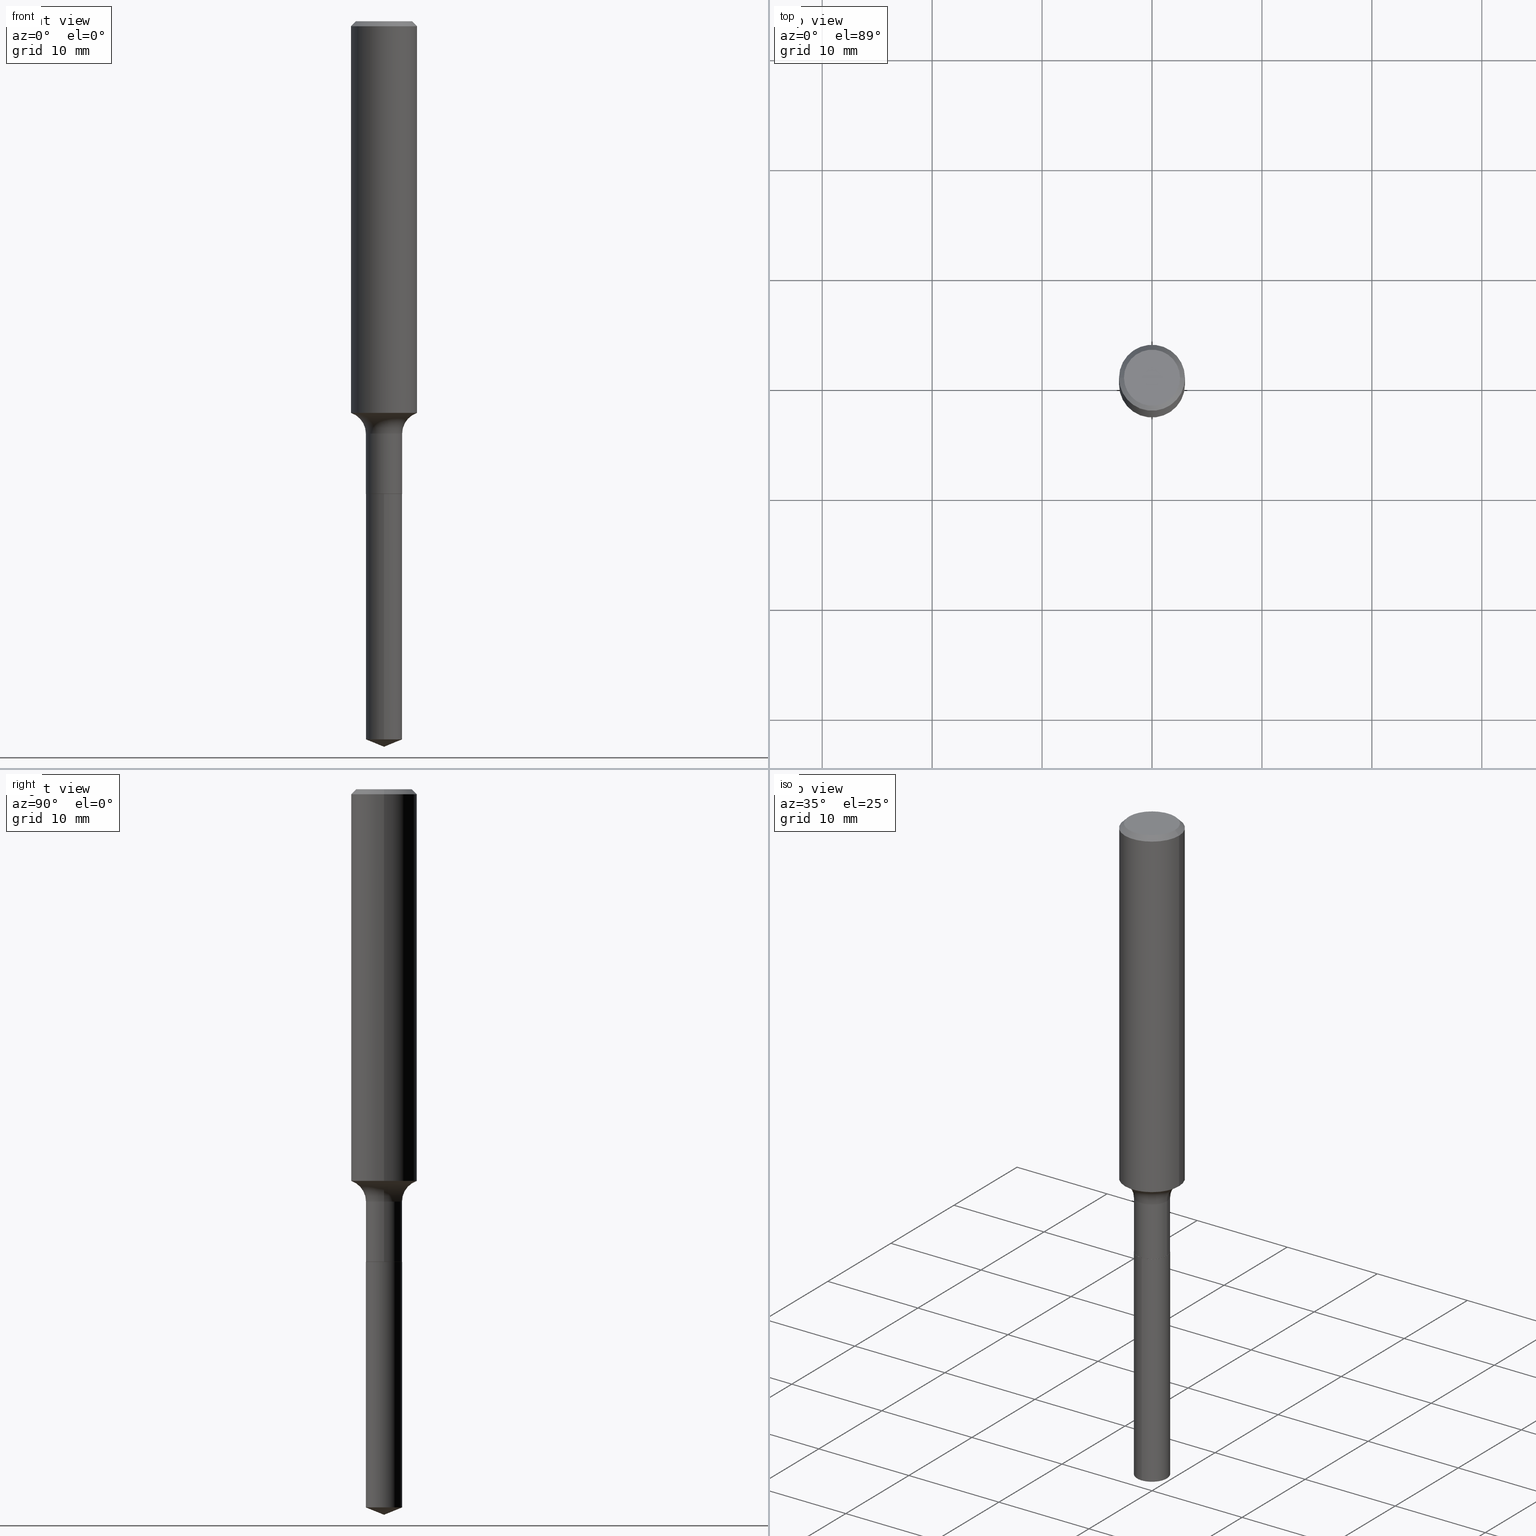
[diagram: canonical four-view strip — front | top / right | iso, engineering-drawing reading convention]
A machine part, canonical four-view strip (front | top / right | iso — engineering-drawing reading convention). The complete STEP part file that produces these views, byte-faithful:
ISO-10303-21;
HEADER;
FILE_DESCRIPTION (( 'STEP AP203' ),
    '1' );
FILE_NAME ('69226.STEP',
    '2024-04-19T17:26:17',
    ( '' ),
    ( '' ),
    'SwSTEP 2.0',
    'SolidWorks 2023',
    '' );
FILE_SCHEMA (( 'CONFIG_CONTROL_DESIGN' ));
ENDSEC;

DATA;
#1 = CARTESIAN_POINT ( 'NONE',  ( 0.000000000000000000, 0.000000000000000000, 0.000000000000000000 ) ) ;
#2 = ORIENTED_EDGE ( 'NONE', *, *, #439, .F. ) ;
#3 = ORIENTED_EDGE ( 'NONE', *, *, #476, .F. ) ;
#4 = AXIS2_PLACEMENT_3D ( 'NONE', #474, #397, #175 ) ;
#5 = AXIS2_PLACEMENT_3D ( 'NONE', #176, #334, #301 ) ;
#6 = DIRECTION ( 'NONE',  ( -2.445468806185136597E-29, 3.491481338843145583E-15, 1.000000000000000000 ) ) ;
#7 = LOCAL_TIME ( 13, 26, 17.00000000000000000, #323 ) ;
#8 = VERTEX_POINT ( 'NONE', #373 ) ;
#9 = SHAPE_DEFINITION_REPRESENTATION ( #18, #149 ) ;
#10 = CARTESIAN_POINT ( 'NONE',  ( 4.138955954468343780E-29, -5.909332165992023872E-15, -1.692500000000000115 ) ) ;
#11 = EDGE_CURVE ( 'NONE', #117, #8, #156, .T. ) ;
#12 = AXIS2_PLACEMENT_3D ( 'NONE', #279, #356, #132 ) ;
#13 = CIRCLE ( 'NONE', #125, 0.06494999999999999385 ) ;
#14 = CARTESIAN_POINT ( 'NONE',  ( 0.06494999999999999385, -6.361129851238325562E-15, -1.692000000000000171 ) ) ;
#15 = APPROVAL_PERSON_ORGANIZATION ( #278, #339, #200 ) ;
#16 = APPROVAL_DATE_TIME ( #390, #432 ) ;
#17 = FACE_OUTER_BOUND ( 'NONE', #418, .T. ) ;
#18 = PRODUCT_DEFINITION_SHAPE ( 'NONE', 'NONE',  #423 ) ;
#19 = APPROVAL ( #294, 'UNSPECIFIED' ) ;
#20 = PERSON_AND_ORGANIZATION ( #395, #281 ) ;
#21 = ORIENTED_EDGE ( 'NONE', *, *, #265, .T. ) ;
#22 = CARTESIAN_POINT ( 'NONE',  ( 4.332147990156998495E-31, -6.185159191760674092E-17, -0.01771500000000011954 ) ) ;
#23 = DIRECTION ( 'NONE',  ( 1.000000000000000000, -6.982962677686266711E-15, 4.883557194083113462E-29 ) ) ;
#24 = DIRECTION ( 'NONE',  ( -6.982962677686266711E-15, -1.000000000000000000, 4.206078512185163024E-15 ) ) ;
#25 = ADVANCED_FACE ( 'NONE', ( #17 ), #387, .T. ) ;
#26 = VERTEX_POINT ( 'NONE', #438 ) ;
#27 = CARTESIAN_POINT ( 'NONE',  ( 3.610734692332354436E-29, -5.155172196801903565E-15, -1.476499999999999924 ) ) ;
#28 = EDGE_CURVE ( 'NONE', #311, #8, #394, .T. ) ;
#29 = FACE_OUTER_BOUND ( 'NONE', #275, .T. ) ;
#30 = AXIS2_PLACEMENT_3D ( 'NONE', #472, #124, #325 ) ;
#31 = CC_DESIGN_APPROVAL ( #19, ( #314 ) ) ;
#32 = CARTESIAN_POINT ( 'NONE',  ( 0.1180999999999999966, -8.865394841523548556E-16, -0.01771500000000011954 ) ) ;
#33 = EDGE_CURVE ( 'NONE', #241, #349, #377, .T. ) ;
#34 = FACE_OUTER_BOUND ( 'NONE', #473, .T. ) ;
#35 = LINE ( 'NONE', #453, #255 ) ;
#36 = TOROIDAL_SURFACE ( 'NONE', #74, 0.1429499999999999660, 0.07799999999999999989 ) ;
#37 = ORIENTED_EDGE ( 'NONE', *, *, #11, .T. ) ;
#38 = DIRECTION ( 'NONE',  ( 1.000000000000000000, -6.982962677686271444E-15, 0.000000000000000000 ) ) ;
#39 = ORIENTED_EDGE ( 'NONE', *, *, #115, .T. ) ;
#40 = EDGE_LOOP ( 'NONE', ( #172, #466, #94, #151 ) ) ;
#41 = ORIENTED_EDGE ( 'NONE', *, *, #326, .T. ) ;
#42 = CYLINDRICAL_SURFACE ( 'NONE', #109, 0.06494999999999999385 ) ;
#43 = CC_DESIGN_PERSON_AND_ORGANIZATION_ASSIGNMENT ( #201, #96, ( #243 ) ) ;
#44 = CARTESIAN_POINT ( 'NONE',  ( 3.610734692332354436E-29, -5.155172196801903565E-15, -1.476499999999999924 ) ) ;
#45 = ORIENTED_EDGE ( 'NONE', *, *, #113, .T. ) ;
#46 = CONICAL_SURFACE ( 'NONE', #234, 0.06444999999999999341, 0.7853981633975507526 ) ;
#47 = PERSON_AND_ORGANIZATION_ROLE ( 'classification_officer' ) ;
#48 = APPROVAL_STATUS ( 'not_yet_approved' ) ;
#49 = EDGE_CURVE ( 'NONE', #83, #492, #290, .T. ) ;
#50 = DIRECTION ( 'NONE',  ( 1.000000000000000000, -6.982962677686268288E-15, 0.000000000000000000 ) ) ;
#51 =( NAMED_UNIT ( * ) SI_UNIT ( $, .STERADIAN. ) SOLID_ANGLE_UNIT ( ) );
#52 = DIRECTION ( 'NONE',  ( 2.451878459129799997E-29, -3.482302351011597532E-15, -1.000000000000000000 ) ) ;
#53 = VECTOR ( 'NONE', #98, 39.37007874015748143 ) ;
#54 = PERSON_AND_ORGANIZATION ( #395, #281 ) ;
#55 = VECTOR ( 'NONE', #188, 39.37007874015748143 ) ;
#56 = ORIENTED_EDGE ( 'NONE', *, *, #158, .T. ) ;
#57 = DIRECTION ( 'NONE',  ( -2.451878459129800558E-29, 3.482302351011597138E-15, 1.000000000000000000 ) ) ;
#58 = LOCAL_TIME ( 13, 26, 17.00000000000000000, #475 ) ;
#59 = ADVANCED_FACE ( 'NONE', ( #469 ), #320, .T. ) ;
#60 = DATE_AND_TIME ( #396, #180 ) ;
#61 = EDGE_CURVE ( 'NONE', #110, #117, #405, .T. ) ;
#62 = ORIENTED_EDGE ( 'NONE', *, *, #326, .F. ) ;
#63 = DIRECTION ( 'NONE',  ( -2.451878459129800558E-29, 3.482302351011597532E-15, 1.000000000000000000 ) ) ;
#64 = DIRECTION ( 'NONE',  ( 1.000000000000000000, -6.982962677686270655E-15, 0.000000000000000000 ) ) ;
#65 = DIRECTION ( 'NONE',  ( 1.000000000000000000, -6.982962677686259611E-15, 0.000000000000000000 ) ) ;
#66 = AXIS2_PLACEMENT_3D ( 'NONE', #178, #69, #261 ) ;
#67 = CC_DESIGN_SECURITY_CLASSIFICATION ( #314, ( #322 ) ) ;
#68 = ADVANCED_FACE ( 'NONE', ( #92 ), #357, .F. ) ;
#69 = DIRECTION ( 'NONE',  ( -2.445468806185136597E-29, 3.491481338843145583E-15, 1.000000000000000000 ) ) ;
#70 = EDGE_CURVE ( 'NONE', #26, #383, #207, .T. ) ;
#71 = DIRECTION ( 'NONE',  ( -2.445468806185136597E-29, 3.491481338843145583E-15, 1.000000000000000000 ) ) ;
#72 = CARTESIAN_POINT ( 'NONE',  ( 4.332147990156998495E-31, -6.185159191760674092E-17, -0.01771500000000011954 ) ) ;
#73 = ORIENTED_EDGE ( 'NONE', *, *, #166, .T. ) ;
#74 = AXIS2_PLACEMENT_3D ( 'NONE', #27, #414, #338 ) ;
#75 = CARTESIAN_POINT ( 'NONE',  ( -0.1429499999999999660, -4.139451356032840985E-15, -1.476499999999999924 ) ) ;
#76 = LINE ( 'NONE', #308, #55 ) ;
#77 = ORIENTED_EDGE ( 'NONE', *, *, #33, .F. ) ;
#78 = DIRECTION ( 'NONE',  ( -6.982962677686266711E-15, -1.000000000000000000, 3.491481338843145583E-15 ) ) ;
#79 = ORIENTED_EDGE ( 'NONE', *, *, #158, .F. ) ;
#80 =( LENGTH_UNIT ( ) NAMED_UNIT ( * ) SI_UNIT ( $, .METRE. ) );
#81 = ADVANCED_FACE ( 'NONE', ( #319 ), #129, .F. ) ;
#82 = EDGE_LOOP ( 'NONE', ( #463, #330, #309, #2 ) ) ;
#83 = VERTEX_POINT ( 'NONE', #14 ) ;
#84 = DIRECTION ( 'NONE',  ( 1.000000000000000000, -6.982962677686270655E-15, 0.000000000000000000 ) ) ;
#85 = DIRECTION ( 'NONE',  ( -2.445468806185136597E-29, 3.491481338843145583E-15, 1.000000000000000000 ) ) ;
#86 = AXIS2_PLACEMENT_3D ( 'NONE', #252, #430, #50 ) ;
#87 = AXIS2_PLACEMENT_3D ( 'NONE', #146, #441, #24 ) ;
#88 =( GEOMETRIC_REPRESENTATION_CONTEXT ( 3 ) GLOBAL_UNCERTAINTY_ASSIGNED_CONTEXT ( ( #369 ) ) GLOBAL_UNIT_ASSIGNED_CONTEXT ( ( #459, #130, #51 ) ) REPRESENTATION_CONTEXT ( 'NONE', 'WORKASPACE' ) );
#89 = DIRECTION ( 'NONE',  ( 1.000000000000000000, 0.000000000000000000, 0.000000000000000000 ) ) ;
#90 = CARTESIAN_POINT ( 'NONE',  ( 4.614975068762263436E-16, 0.06494999999999408191, -1.692500000000000338 ) ) ;
#91 = ORIENTED_EDGE ( 'NONE', *, *, #479, .T. ) ;
#92 = FACE_OUTER_BOUND ( 'NONE', #226, .T. ) ;
#93 = APPROVAL_DATE_TIME ( #467, #19 ) ;
#94 = ORIENTED_EDGE ( 'NONE', *, *, #455, .F. ) ;
#95 = DIRECTION ( 'NONE',  ( -1.000000000000000000, 6.982962677686266711E-15, 0.000000000000000000 ) ) ;
#96 = PERSON_AND_ORGANIZATION_ROLE ( 'design_owner' ) ;
#97 = CONICAL_SURFACE ( 'NONE', #468, 97.44436430773025393, 1.186823891356151517 ) ;
#98 = DIRECTION ( 'NONE',  ( -0.7071067811865453523, 2.468850131082234184E-15, -0.7071067811865496822 ) ) ;
#99 = COORDINATED_UNIVERSAL_TIME_OFFSET ( 5, 0, .BEHIND. ) ;
#100 = ORIENTED_EDGE ( 'NONE', *, *, #360, .F. ) ;
#101 = CARTESIAN_POINT ( 'NONE',  ( 6.369980236819220801E-29, -9.047021507928130745E-15, -2.597999999999999865 ) ) ;
#102 = DIRECTION ( 'NONE',  ( -2.445468806185136597E-29, 3.491481338843145583E-15, 1.000000000000000000 ) ) ;
#103 = AXIS2_PLACEMENT_3D ( 'NONE', #10, #162, #359 ) ;
#104 = FACE_OUTER_BOUND ( 'NONE', #40, .T. ) ;
#105 = DIRECTION ( 'NONE',  ( 7.105427357601001859E-15, 1.000000000000000000, -3.491481338843145583E-15 ) ) ;
#106 = FACE_OUTER_BOUND ( 'NONE', #238, .T. ) ;
#107 = CC_DESIGN_PERSON_AND_ORGANIZATION_ASSIGNMENT ( #54, #167, ( #423 ) ) ;
#108 = DIRECTION ( 'NONE',  ( 2.445468806185136597E-29, -3.491481338843145583E-15, -1.000000000000000000 ) ) ;
#109 = AXIS2_PLACEMENT_3D ( 'NONE', #121, #307, #266 ) ;
#110 = VERTEX_POINT ( 'NONE', #434 ) ;
#111 = CYLINDRICAL_SURFACE ( 'NONE', #408, 0.06494999999999999385 ) ;
#112 = DIRECTION ( 'NONE',  ( -2.451878459129800558E-29, 3.482302351011597138E-15, 1.000000000000000000 ) ) ;
#113 = EDGE_CURVE ( 'NONE', #189, #241, #165, .T. ) ;
#114 = ORIENTED_EDGE ( 'NONE', *, *, #348, .F. ) ;
#115 = EDGE_CURVE ( 'NONE', #205, #135, #244, .T. ) ;
#116 = CARTESIAN_POINT ( 'NONE',  ( 0.06444999999999999341, -6.359384110568903269E-15, -1.692500000000000115 ) ) ;
#117 = VERTEX_POINT ( 'NONE', #296 ) ;
#118 = CIRCLE ( 'NONE', #305, 0.06494999999999996609 ) ;
#119 = ORIENTED_EDGE ( 'NONE', *, *, #348, .T. ) ;
#120 = DIRECTION ( 'NONE',  ( -2.451878459129800558E-29, 3.482302351011597138E-15, 1.000000000000000000 ) ) ;
#121 = CARTESIAN_POINT ( 'NONE',  ( 4.138955954468343780E-29, -5.909332165992023872E-15, -1.692500000000000115 ) ) ;
#122 = CC_DESIGN_PERSON_AND_ORGANIZATION_ASSIGNMENT ( #361, #329, ( #322 ) ) ;
#123 = PERSON_AND_ORGANIZATION ( #395, #281 ) ;
#124 = DIRECTION ( 'NONE',  ( -2.445468806185136597E-29, 3.491481338843145583E-15, 1.000000000000000000 ) ) ;
#125 = AXIS2_PLACEMENT_3D ( 'NONE', #375, #217, #448 ) ;
#126 = CC_DESIGN_APPROVAL ( #339, ( #322 ) ) ;
#127 = COORDINATED_UNIVERSAL_TIME_OFFSET ( 5, 0, .BEHIND. ) ;
#128 = APPLICATION_PROTOCOL_DEFINITION ( 'international standard', 'config_control_design', 1994, #485 ) ;
#129 = PLANE ( 'NONE',  #270 ) ;
#130 =( NAMED_UNIT ( * ) PLANE_ANGLE_UNIT ( ) SI_UNIT ( $, .RADIAN. ) );
#131 = ORIENTED_EDGE ( 'NONE', *, *, #49, .F. ) ;
#132 = DIRECTION ( 'NONE',  ( 1.000000000000000000, -6.982962677686270655E-15, 0.000000000000000000 ) ) ;
#133 = MANIFOLD_SOLID_BREP ( 'Body-Move/Copy2[2]', #141 ) ;
#134 = DATE_TIME_ROLE ( 'classification_date' ) ;
#135 = VERTEX_POINT ( 'NONE', #433 ) ;
#136 = CARTESIAN_POINT ( 'NONE',  ( 0.1181000000000000799, -8.246878922347486570E-16, 5.758764772215004644E-30 ) ) ;
#137 = AXIS2_PLACEMENT_3D ( 'NONE', #1, #85, #192 ) ;
#138 = FACE_OUTER_BOUND ( 'NONE', #385, .T. ) ;
#139 = EDGE_CURVE ( 'NONE', #492, #248, #249, .T. ) ;
#140 = DIRECTION ( 'NONE',  ( -2.445468806185136597E-29, 3.491481338843145583E-15, 1.000000000000000000 ) ) ;
#141 = CLOSED_SHELL ( 'NONE', ( #460, #25, #194, #144, #335, #299, #229, #461, #174, #452, #68, #59 ) ) ;
#142 = ORIENTED_EDGE ( 'NONE', *, *, #11, .F. ) ;
#143 = DIRECTION ( 'NONE',  ( -6.982962677686265133E-15, -1.000000000000000000, 3.498761904101762082E-15 ) ) ;
#144 = ADVANCED_FACE ( 'NONE', ( #285 ), #457, .F. ) ;
#145 = VERTEX_POINT ( 'NONE', #465 ) ;
#146 = CARTESIAN_POINT ( 'NONE',  ( 4.138955954468343780E-29, -5.909332165992023872E-15, -1.692500000000000115 ) ) ;
#147 = DIRECTION ( 'NONE',  ( 0.7071067811865453523, -7.319954787623248157E-15, -0.7071067811865496822 ) ) ;
#148 = LOCAL_TIME ( 13, 26, 17.00000000000000000, #169 ) ;
#149 = ADVANCED_BREP_SHAPE_REPRESENTATION ( '69226', ( #458, #133, #246 ), #88 ) ;
#150 = DIRECTION ( 'NONE',  ( 1.000000000000000000, -6.982962677686259611E-15, 0.000000000000000000 ) ) ;
#151 = ORIENTED_EDGE ( 'NONE', *, *, #366, .F. ) ;
#152 = DIRECTION ( 'NONE',  ( -6.982962677686266711E-15, -1.000000000000000000, 4.206078512185163024E-15 ) ) ;
#153 = VERTEX_POINT ( 'NONE', #101 ) ;
#154 = EDGE_LOOP ( 'NONE', ( #422, #218, #142, #225 ) ) ;
#155 = VERTEX_POINT ( 'NONE', #331 ) ;
#156 = CIRCLE ( 'NONE', #435, 0.06494999999999999385 ) ;
#157 = LINE ( 'NONE', #384, #407 ) ;
#158 = EDGE_CURVE ( 'NONE', #383, #26, #321, .T. ) ;
#159 = ORIENTED_EDGE ( 'NONE', *, *, #386, .T. ) ;
#160 = DATE_TIME_ROLE ( 'creation_date' ) ;
#161 = MECHANICAL_CONTEXT ( 'NONE', #485, 'mechanical' ) ;
#162 = DIRECTION ( 'NONE',  ( -2.445468806185136597E-29, 3.491481338843145583E-15, 1.000000000000000000 ) ) ;
#163 = CC_DESIGN_APPROVAL ( #432, ( #423 ) ) ;
#164 = APPROVAL_STATUS ( 'not_yet_approved' ) ;
#165 = LINE ( 'NONE', #235, #53 ) ;
#166 = EDGE_CURVE ( 'NONE', #383, #349, #478, .T. ) ;
#167 = PERSON_AND_ORGANIZATION_ROLE ( 'creator' ) ;
#168 = CARTESIAN_POINT ( 'NONE',  ( -4.535434259156815808E-16, -0.06495000000000590579, -1.692499999999999671 ) ) ;
#169 = COORDINATED_UNIVERSAL_TIME_OFFSET ( 5, 0, .BEHIND. ) ;
#170 = EDGE_LOOP ( 'NONE', ( #230, #437, #73, #77 ) ) ;
#171 = DIRECTION ( 'NONE',  ( -2.445468806185136597E-29, 3.491481338843145583E-15, 1.000000000000000000 ) ) ;
#172 = ORIENTED_EDGE ( 'NONE', *, *, #49, .T. ) ;
#173 = AXIS2_PLACEMENT_3D ( 'NONE', #391, #363, #64 ) ;
#174 = ADVANCED_FACE ( 'NONE', ( #440 ), #427, .T. ) ;
#175 = DIRECTION ( 'NONE',  ( 1.000000000000000000, -6.982962677686266711E-15, 0.000000000000000000 ) ) ;
#176 = CARTESIAN_POINT ( 'NONE',  ( 0.000000000000000000, 0.000000000000000000, 0.000000000000000000 ) ) ;
#177 = CARTESIAN_POINT ( 'NONE',  ( 4.137733220065251539E-29, -5.907586425322602368E-15, -1.692000000000000171 ) ) ;
#178 = CARTESIAN_POINT ( 'NONE',  ( 0.000000000000000000, 0.000000000000000000, 0.000000000000000000 ) ) ;
#179 = CIRCLE ( 'NONE', #262, 0.06494999999999996609 ) ;
#180 = LOCAL_TIME ( 13, 26, 17.00000000000000000, #127 ) ;
#181 = ADVANCED_FACE ( 'NONE', ( #138 ), #400, .T. ) ;
#182 = CARTESIAN_POINT ( 'NONE',  ( 3.610734692332354436E-29, -5.155172196801903565E-15, -1.476499999999999924 ) ) ;
#183 = FACE_OUTER_BOUND ( 'NONE', #380, .T. ) ;
#184 = CARTESIAN_POINT ( 'NONE',  ( 4.138955954468343780E-29, -5.909332165992023872E-15, -1.692500000000000115 ) ) ;
#185 = EDGE_LOOP ( 'NONE', ( #37, #41 ) ) ;
#186 = VECTOR ( 'NONE', #63, 39.37007874015748143 ) ;
#187 = EDGE_CURVE ( 'NONE', #110, #311, #13, .T. ) ;
#188 = DIRECTION ( 'NONE',  ( -2.445468806185136877E-29, 3.491481338843145188E-15, 1.000000000000000000 ) ) ;
#189 = VERTEX_POINT ( 'NONE', #444 ) ;
#190 = ORIENTED_EDGE ( 'NONE', *, *, #115, .F. ) ;
#191 = ORIENTED_EDGE ( 'NONE', *, *, #455, .T. ) ;
#192 = DIRECTION ( 'NONE',  ( 1.000000000000000000, -6.982962677686266711E-15, 4.876176775795936353E-29 ) ) ;
#193 = ORIENTED_EDGE ( 'NONE', *, *, #166, .F. ) ;
#194 = ADVANCED_FACE ( 'NONE', ( #29 ), #216, .T. ) ;
#195 = CARTESIAN_POINT ( 'NONE',  ( 0.06494999999999997997, -4.535434259157228974E-16, 3.167076815879459014E-30 ) ) ;
#196 = AXIS2_PLACEMENT_3D ( 'NONE', #481, #140, #65 ) ;
#197 = AXIS2_PLACEMENT_3D ( 'NONE', #75, #105, #297 ) ;
#198 = AXIS2_PLACEMENT_3D ( 'NONE', #233, #120, #487 ) ;
#199 = APPLICATION_CONTEXT ( 'configuration controlled 3d designs of mechanical parts and assemblies' ) ;
#200 = APPROVAL_ROLE ( '' ) ;
#201 = PERSON_AND_ORGANIZATION ( #395, #281 ) ;
#202 = DIRECTION ( 'NONE',  ( -2.451878459129800558E-29, 3.482302351011597532E-15, 1.000000000000000000 ) ) ;
#203 = DIMENSIONAL_EXPONENTS ( 1.000000000000000000, 0.000000000000000000, 0.000000000000000000, 0.000000000000000000, 0.000000000000000000, 0.000000000000000000, 0.000000000000000000 ) ;
#204 = CARTESIAN_POINT ( 'NONE',  ( 0.000000000000000000, 0.000000000000000000, 0.000000000000000000 ) ) ;
#205 = VERTEX_POINT ( 'NONE', #336 ) ;
#206 = DIRECTION ( 'NONE',  ( 6.982962677686265922E-15, 1.000000000000000000, -3.482302351011597532E-15 ) ) ;
#207 = CIRCLE ( 'NONE', #12, 0.1181000000000001632 ) ;
#208 = CIRCLE ( 'NONE', #332, 0.06494999999999999385 ) ;
#209 = DIRECTION ( 'NONE',  ( -6.982962677686266711E-15, -1.000000000000000000, 4.206078512185163024E-15 ) ) ;
#210 = PERSON_AND_ORGANIZATION_ROLE ( 'creator' ) ;
#211 = CARTESIAN_POINT ( 'NONE',  ( 3.610734692332354436E-29, -5.155172196801903565E-15, -1.476499999999999924 ) ) ;
#212 = EDGE_CURVE ( 'NONE', #189, #145, #291, .T. ) ;
#213 = DIRECTION ( 'NONE',  ( -2.438088387897960049E-29, 3.491481338843145188E-15, 1.000000000000000000 ) ) ;
#214 = AXIS2_PLACEMENT_3D ( 'NONE', #211, #171, #23 ) ;
#215 = DIRECTION ( 'NONE',  ( 1.000000000000000000, -6.982962677686266711E-15, 0.000000000000000000 ) ) ;
#216 = CYLINDRICAL_SURFACE ( 'NONE', #5, 0.1181000000000000799 ) ;
#217 = DIRECTION ( 'NONE',  ( -2.451878459129800558E-29, 3.482302351011597138E-15, 1.000000000000000000 ) ) ;
#218 = ORIENTED_EDGE ( 'NONE', *, *, #28, .T. ) ;
#219 = ORIENTED_EDGE ( 'NONE', *, *, #276, .T. ) ;
#220 = DIRECTION ( 'NONE',  ( -2.445468806185136597E-29, 3.491481338843145583E-15, 1.000000000000000000 ) ) ;
#221 = AXIS2_PLACEMENT_3D ( 'NONE', #224, #491, #421 ) ;
#222 = DIRECTION ( 'NONE',  ( -0.7071067811866199593, 7.493145998870616062E-15, 0.7071067811864750752 ) ) ;
#223 = PLANE ( 'NONE',  #413 ) ;
#224 = CARTESIAN_POINT ( 'NONE',  ( 5.011033706304132718E-46, -7.154428071060963220E-32, -2.049109640503330010E-17 ) ) ;
#225 = ORIENTED_EDGE ( 'NONE', *, *, #61, .F. ) ;
#226 = EDGE_LOOP ( 'NONE', ( #190, #449 ) ) ;
#227 = DIRECTION ( 'NONE',  ( -6.474490251793195984E-15, -0.9271838545667887566, 0.3746065934159084065 ) ) ;
#228 = ORIENTED_EDGE ( 'NONE', *, *, #360, .T. ) ;
#229 = ADVANCED_FACE ( 'NONE', ( #263 ), #36, .F. ) ;
#230 = ORIENTED_EDGE ( 'NONE', *, *, #402, .F. ) ;
#231 = LINE ( 'NONE', #195, #271 ) ;
#232 = EDGE_LOOP ( 'NONE', ( #381, #219, #287, #114 ) ) ;
#233 = CARTESIAN_POINT ( 'NONE',  ( 6.294790922367213994E-29, -8.971176095960585550E-15, -2.571758496632007063 ) ) ;
#234 = AXIS2_PLACEMENT_3D ( 'NONE', #315, #274, #150 ) ;
#235 = CARTESIAN_POINT ( 'NONE',  ( -0.1180999999999999966, 7.628363003171412752E-16, -0.01771500000000011954 ) ) ;
#236 = APPROVAL_DATE_TIME ( #60, #339 ) ;
#237 = EDGE_CURVE ( 'NONE', #26, #248, #245, .T. ) ;
#238 = EDGE_LOOP ( 'NONE', ( #490, #119, #362, #273 ) ) ;
#239 = DIRECTION ( 'NONE',  ( 1.000000000000000000, -6.982962677686265922E-15, 4.876176775795935793E-29 ) ) ;
#240 = APPROVAL_ROLE ( '' ) ;
#241 = VERTEX_POINT ( 'NONE', #484 ) ;
#242 = CARTESIAN_POINT ( 'NONE',  ( 4.138955954468343780E-29, -5.909332165992023872E-15, -1.692500000000000115 ) ) ;
#243 = PRODUCT ( '69226', '69226', '', ( #161 ) ) ;
#244 = CIRCLE ( 'NONE', #30, 0.06444999999999999341 ) ;
#245 = CIRCLE ( 'NONE', #197, 0.07799999999999999989 ) ;
#246 = AXIS2_PLACEMENT_3D ( 'NONE', #204, #429, #89 ) ;
#247 = CALENDAR_DATE ( 2024, 19, 4 ) ;
#248 = VERTEX_POINT ( 'NONE', #253 ) ;
#249 = LINE ( 'NONE', #284, #312 ) ;
#250 = PRODUCT_RELATED_PRODUCT_CATEGORY ( 'detail', '', ( #243 ) ) ;
#251 = APPROVAL_ROLE ( '' ) ;
#252 = CARTESIAN_POINT ( 'NONE',  ( 4.137733220065251539E-29, -5.907586425322602368E-15, -1.692000000000000171 ) ) ;
#253 = CARTESIAN_POINT ( 'NONE',  ( -0.06494999999999996609, -5.069881804186068235E-15, -1.476499999999999924 ) ) ;
#254 = AXIS2_PLACEMENT_3D ( 'NONE', #351, #78, #84 ) ;
#255 = VECTOR ( 'NONE', #147, 39.37007874015748143 ) ;
#256 = DIRECTION ( 'NONE',  ( 1.000000000000000000, -6.982962677686266711E-15, 4.876176775795935232E-29 ) ) ;
#257 = ORIENTED_EDGE ( 'NONE', *, *, #402, .T. ) ;
#258 = CC_DESIGN_DATE_AND_TIME_ASSIGNMENT ( #431, #160, ( #423 ) ) ;
#259 = DIRECTION ( 'NONE',  ( -2.451878459129800558E-29, 3.482302351011597138E-15, 1.000000000000000000 ) ) ;
#260 = ORIENTED_EDGE ( 'NONE', *, *, #237, .F. ) ;
#261 = DIRECTION ( 'NONE',  ( 1.000000000000000000, -6.982962677686266711E-15, 4.876176775795935232E-29 ) ) ;
#262 = AXIS2_PLACEMENT_3D ( 'NONE', #182, #340, #344 ) ;
#263 = FACE_OUTER_BOUND ( 'NONE', #346, .T. ) ;
#264 = EDGE_LOOP ( 'NONE', ( #403, #451, #45, #420 ) ) ;
#265 = EDGE_CURVE ( 'NONE', #135, #492, #367, .T. ) ;
#266 = DIRECTION ( 'NONE',  ( -6.982962677686266711E-15, -1.000000000000000000, 4.206078512185163024E-15 ) ) ;
#267 = FACE_OUTER_BOUND ( 'NONE', #283, .T. ) ;
#268 = ORIENTED_EDGE ( 'NONE', *, *, #445, .F. ) ;
#269 = FACE_OUTER_BOUND ( 'NONE', #170, .T. ) ;
#270 = AXIS2_PLACEMENT_3D ( 'NONE', #288, #52, #206 ) ;
#271 = VECTOR ( 'NONE', #450, 39.37007874015748143 ) ;
#272 = APPROVAL_PERSON_ORGANIZATION ( #123, #19, #251 ) ;
#273 = ORIENTED_EDGE ( 'NONE', *, *, #354, .F. ) ;
#274 = DIRECTION ( 'NONE',  ( -2.445468806185136597E-29, 3.491481338843145583E-15, 1.000000000000000000 ) ) ;
#275 = EDGE_LOOP ( 'NONE', ( #56, #257, #295, #193 ) ) ;
#276 = EDGE_CURVE ( 'NONE', #135, #205, #313, .T. ) ;
#277 = DIRECTION ( 'NONE',  ( 0.7071067811866199593, -2.468850131083015945E-15, 0.7071067811864750752 ) ) ;
#278 = PERSON_AND_ORGANIZATION ( #395, #281 ) ;
#279 = CARTESIAN_POINT ( 'NONE',  ( 3.429927413575000443E-29, -4.897027321630464566E-15, -1.402564369212131457 ) ) ;
#280 = CIRCLE ( 'NONE', #358, 0.1180999999999999966 ) ;
#281 = ORGANIZATION ( 'UNSPECIFIED', 'UNSPECIFIED', '' ) ;
#282 = CC_DESIGN_PERSON_AND_ORGANIZATION_ASSIGNMENT ( #318, #47, ( #314 ) ) ;
#283 = EDGE_LOOP ( 'NONE', ( #412, #347, #393, #62 ) ) ;
#284 = CARTESIAN_POINT ( 'NONE',  ( -0.06494999999999997997, 4.614975068761849284E-16, -3.194848341120560204E-30 ) ) ;
#285 = FACE_OUTER_BOUND ( 'NONE', #82, .T. ) ;
#286 = CC_DESIGN_DATE_AND_TIME_ASSIGNMENT ( #392, #134, ( #314 ) ) ;
#287 = ORIENTED_EDGE ( 'NONE', *, *, #445, .T. ) ;
#288 = CARTESIAN_POINT ( 'NONE',  ( 4.138955954468343780E-29, -5.909332165992023872E-15, -1.692500000000000115 ) ) ;
#289 = ORIENTED_EDGE ( 'NONE', *, *, #212, .T. ) ;
#290 = CIRCLE ( 'NONE', #86, 0.06494999999999999385 ) ;
#291 = CIRCLE ( 'NONE', #300, 0.1003850000000000159 ) ;
#292 = ADVANCED_FACE ( 'NONE', ( #34 ), #97, .T. ) ;
#293 = DESIGN_CONTEXT ( 'detailed design', #199, 'design' ) ;
#294 = APPROVAL_STATUS ( 'not_yet_approved' ) ;
#295 = ORIENTED_EDGE ( 'NONE', *, *, #304, .F. ) ;
#296 = CARTESIAN_POINT ( 'NONE',  ( -4.535434259156815808E-16, -0.06495000000000590579, -1.692499999999999671 ) ) ;
#297 = DIRECTION ( 'NONE',  ( -1.000000000000000000, 7.105427357601005014E-15, 0.000000000000000000 ) ) ;
#298 = CARTESIAN_POINT ( 'NONE',  ( 4.614975068762477415E-16, 0.06494999999999100104, -2.571758496632007063 ) ) ;
#299 = ADVANCED_FACE ( 'NONE', ( #106 ), #409, .T. ) ;
#300 = AXIS2_PLACEMENT_3D ( 'NONE', #447, #102, #302 ) ;
#301 = DIRECTION ( 'NONE',  ( 1.000000000000000000, -6.982962677686266711E-15, 4.876176775795936353E-29 ) ) ;
#302 = DIRECTION ( 'NONE',  ( 1.000000000000000000, -6.982962677686266711E-15, 4.875668750515085695E-29 ) ) ;
#303 = CARTESIAN_POINT ( 'NONE',  ( -9.017151609802586951E-28, 1.280359608115290548E-13, 36.77207874015748246 ) ) ;
#304 = EDGE_CURVE ( 'NONE', #349, #241, #280, .T. ) ;
#305 = AXIS2_PLACEMENT_3D ( 'NONE', #44, #6, #38 ) ;
#306 = FACE_OUTER_BOUND ( 'NONE', #154, .T. ) ;
#307 = DIRECTION ( 'NONE',  ( -2.451878459129800558E-29, 3.482302351011597138E-15, 1.000000000000000000 ) ) ;
#308 = CARTESIAN_POINT ( 'NONE',  ( -0.1181000000000000799, 8.391509709326788873E-16, -5.809262341591047988E-30 ) ) ;
#309 = ORIENTED_EDGE ( 'NONE', *, *, #354, .T. ) ;
#310 = LENGTH_MEASURE_WITH_UNIT ( LENGTH_MEASURE( 0.02539999999999999897 ), #80 );
#311 = VERTEX_POINT ( 'NONE', #298 ) ;
#312 = VECTOR ( 'NONE', #404, 39.37007874015748143 ) ;
#313 = CIRCLE ( 'NONE', #196, 0.06444999999999999341 ) ;
#314 = SECURITY_CLASSIFICATION ( '', '', #355 ) ;
#315 = CARTESIAN_POINT ( 'NONE',  ( 4.138955954468343780E-29, -5.909332165992023872E-15, -1.692500000000000115 ) ) ;
#316 = EDGE_LOOP ( 'NONE', ( #289, #464 ) ) ;
#317 = CALENDAR_DATE ( 2024, 19, 4 ) ;
#318 = PERSON_AND_ORGANIZATION ( #395, #281 ) ;
#319 = FACE_OUTER_BOUND ( 'NONE', #185, .T. ) ;
#320 = CONICAL_SURFACE ( 'NONE', #103, 0.06444999999999999341, 0.7853981633975507526 ) ;
#321 = CIRCLE ( 'NONE', #173, 0.1181000000000001632 ) ;
#322 = PRODUCT_DEFINITION_FORMATION_WITH_SPECIFIED_SOURCE ( 'ANY', '', #243, .NOT_KNOWN. ) ;
#323 = COORDINATED_UNIVERSAL_TIME_OFFSET ( 5, 0, .BEHIND. ) ;
#324 = ORIENTED_EDGE ( 'NONE', *, *, #446, .F. ) ;
#325 = DIRECTION ( 'NONE',  ( 1.000000000000000000, -6.982962677686259611E-15, 0.000000000000000000 ) ) ;
#326 = EDGE_CURVE ( 'NONE', #8, #117, #372, .T. ) ;
#327 = CALENDAR_DATE ( 2024, 19, 4 ) ;
#328 = CARTESIAN_POINT ( 'NONE',  ( 4.138955954468343780E-29, -5.909332165992023872E-15, -1.692500000000000115 ) ) ;
#329 = PERSON_AND_ORGANIZATION_ROLE ( 'design_supplier' ) ;
#330 = ORIENTED_EDGE ( 'NONE', *, *, #237, .T. ) ;
#331 = CARTESIAN_POINT ( 'NONE',  ( 0.06494999999999996609, -5.608715622717626758E-15, -1.476499999999999924 ) ) ;
#332 = AXIS2_PLACEMENT_3D ( 'NONE', #177, #71, #370 ) ;
#333 = CARTESIAN_POINT ( 'NONE',  ( -0.06444999999999999341, -5.451387372794639250E-15, -1.692500000000000115 ) ) ;
#334 = DIRECTION ( 'NONE',  ( -2.445468806185136597E-29, 3.491481338843145583E-15, 1.000000000000000000 ) ) ;
#335 = ADVANCED_FACE ( 'NONE', ( #104 ), #411, .T. ) ;
#336 = CARTESIAN_POINT ( 'NONE',  ( 0.06444999999999999341, -6.359384110568903269E-15, -1.692500000000000115 ) ) ;
#337 = CIRCLE ( 'NONE', #221, 0.1003850000000000159 ) ;
#338 = DIRECTION ( 'NONE',  ( 1.000000000000000000, -6.982962677686266711E-15, 4.883557194083113462E-29 ) ) ;
#339 = APPROVAL ( #164, 'UNSPECIFIED' ) ;
#340 = DIRECTION ( 'NONE',  ( -2.445468806185136597E-29, 3.491481338843145583E-15, 1.000000000000000000 ) ) ;
#341 = LINE ( 'NONE', #388, #483 ) ;
#342 = VECTOR ( 'NONE', #202, 39.37007874015748143 ) ;
#343 = AXIS2_PLACEMENT_3D ( 'NONE', #303, #480, #143 ) ;
#344 = DIRECTION ( 'NONE',  ( 1.000000000000000000, -6.982962677686271444E-15, 0.000000000000000000 ) ) ;
#345 = CYLINDRICAL_SURFACE ( 'NONE', #137, 0.1181000000000000799 ) ;
#346 = EDGE_LOOP ( 'NONE', ( #260, #79, #425, #191 ) ) ;
#347 = ORIENTED_EDGE ( 'NONE', *, *, #476, .T. ) ;
#348 = EDGE_CURVE ( 'NONE', #492, #83, #208, .T. ) ;
#349 = VERTEX_POINT ( 'NONE', #32 ) ;
#350 = ORIENTED_EDGE ( 'NONE', *, *, #113, .F. ) ;
#351 = CARTESIAN_POINT ( 'NONE',  ( 0.1429499999999999660, -6.153386711577154804E-15, -1.476499999999999924 ) ) ;
#352 = LOCAL_TIME ( 13, 26, 17.00000000000000000, #99 ) ;
#353 = CALENDAR_DATE ( 2024, 19, 4 ) ;
#354 = EDGE_CURVE ( 'NONE', #248, #155, #179, .T. ) ;
#355 = SECURITY_CLASSIFICATION_LEVEL ( 'unclassified' ) ;
#356 = DIRECTION ( 'NONE',  ( -2.445468806185136597E-29, 3.491481338843145583E-15, 1.000000000000000000 ) ) ;
#357 = PLANE ( 'NONE',  #442 ) ;
#358 = AXIS2_PLACEMENT_3D ( 'NONE', #410, #368, #215 ) ;
#359 = DIRECTION ( 'NONE',  ( 1.000000000000000000, -6.982962677686259611E-15, 0.000000000000000000 ) ) ;
#360 = EDGE_CURVE ( 'NONE', #153, #311, #341, .T. ) ;
#361 = PERSON_AND_ORGANIZATION ( #395, #281 ) ;
#362 = ORIENTED_EDGE ( 'NONE', *, *, #366, .T. ) ;
#363 = DIRECTION ( 'NONE',  ( -2.445468806185136597E-29, 3.491481338843145583E-15, 1.000000000000000000 ) ) ;
#364 = DIRECTION ( 'NONE',  ( -2.445468806185136877E-29, 3.491481338843145188E-15, 1.000000000000000000 ) ) ;
#365 = CIRCLE ( 'NONE', #198, 0.06494999999999999385 ) ;
#366 = EDGE_CURVE ( 'NONE', #83, #155, #231, .T. ) ;
#367 = LINE ( 'NONE', #333, #489 ) ;
#368 = DIRECTION ( 'NONE',  ( -2.445468806185136597E-29, 3.491481338843145583E-15, 1.000000000000000000 ) ) ;
#369 = UNCERTAINTY_MEASURE_WITH_UNIT (LENGTH_MEASURE( 1.000000000000000082E-05 ), #459, 'distance_accuracy_value', 'NONE');
#370 = DIRECTION ( 'NONE',  ( 1.000000000000000000, -6.982962677686268288E-15, 0.000000000000000000 ) ) ;
#371 = CC_DESIGN_PERSON_AND_ORGANIZATION_ASSIGNMENT ( #20, #210, ( #322 ) ) ;
#372 = CIRCLE ( 'NONE', #87, 0.06494999999999999385 ) ;
#373 = CARTESIAN_POINT ( 'NONE',  ( 4.614975068762481359E-16, 0.06494999999999409579, -1.692500000000000338 ) ) ;
#374 = DIRECTION ( 'NONE',  ( -6.982962677686265133E-15, -1.000000000000000000, 3.498761904101762082E-15 ) ) ;
#375 = CARTESIAN_POINT ( 'NONE',  ( 6.294790922367213994E-29, -8.971176095960585550E-15, -2.571758496632007063 ) ) ;
#376 = CARTESIAN_POINT ( 'NONE',  ( 2.505516853152066359E-46, -3.577214035530481610E-32, -1.024554820251665005E-17 ) ) ;
#377 = CIRCLE ( 'NONE', #4, 0.1180999999999999966 ) ;
#378 = VECTOR ( 'NONE', #364, 39.37007874015748143 ) ;
#379 = CARTESIAN_POINT ( 'NONE',  ( 0.1181000000000001632, -5.721715213865214406E-15, -1.402564369212131457 ) ) ;
#380 = EDGE_LOOP ( 'NONE', ( #39, #21, #131, #268 ) ) ;
#381 = ORIENTED_EDGE ( 'NONE', *, *, #265, .F. ) ;
#382 = DIRECTION ( 'NONE',  ( 6.588037525764809434E-15, 0.9271838545667915321, 0.3746065934159019672 ) ) ;
#383 = VERTEX_POINT ( 'NONE', #379 ) ;
#384 = CARTESIAN_POINT ( 'NONE',  ( 6.348283561601534327E-29, -9.078092381737920851E-15, -2.597999999999999865 ) ) ;
#385 = EDGE_LOOP ( 'NONE', ( #100, #159, #3 ) ) ;
#386 = EDGE_CURVE ( 'NONE', #153, #110, #157, .T. ) ;
#387 = CONICAL_SURFACE ( 'NONE', #426, 0.1180999999999999966, 0.7853981633974452814 ) ;
#388 = CARTESIAN_POINT ( 'NONE',  ( 6.370170491050010118E-29, -9.047021507928130745E-15, -2.597999999999999865 ) ) ;
#389 = VECTOR ( 'NONE', #277, 39.37007874015748143 ) ;
#390 = DATE_AND_TIME ( #247, #148 ) ;
#391 = CARTESIAN_POINT ( 'NONE',  ( 3.429927413575000443E-29, -4.897027321630464566E-15, -1.402564369212131457 ) ) ;
#392 = DATE_AND_TIME ( #317, #58 ) ;
#393 = ORIENTED_EDGE ( 'NONE', *, *, #61, .T. ) ;
#394 = LINE ( 'NONE', #90, #342 ) ;
#395 = PERSON ( 'UNSPECIFIED', 'UNSPECIFIED', 'UNSPECIFIED', ('UNSPECIFIED'), ('UNSPECIFIED'), ('UNSPECIFIED') ) ;
#396 = CALENDAR_DATE ( 2024, 19, 4 ) ;
#397 = DIRECTION ( 'NONE',  ( -2.445468806185136597E-29, 3.491481338843145583E-15, 1.000000000000000000 ) ) ;
#398 = CLOSED_SHELL ( 'NONE', ( #488, #292, #181, #399, #81 ) ) ;
#399 = ADVANCED_FACE ( 'NONE', ( #267 ), #42, .T. ) ;
#400 = CONICAL_SURFACE ( 'NONE', #343, 97.44436430773025393, 1.186823891356151517 ) ;
#401 = PERSON_AND_ORGANIZATION ( #395, #281 ) ;
#402 = EDGE_CURVE ( 'NONE', #26, #241, #76, .T. ) ;
#403 = ORIENTED_EDGE ( 'NONE', *, *, #479, .F. ) ;
#404 = DIRECTION ( 'NONE',  ( -2.445468806185136877E-29, 3.491481338843145188E-15, 1.000000000000000000 ) ) ;
#405 = LINE ( 'NONE', #168, #186 ) ;
#406 = CARTESIAN_POINT ( 'NONE',  ( -9.017151609802586951E-28, 1.280359608115290548E-13, 36.77207874015748246 ) ) ;
#407 = VECTOR ( 'NONE', #227, 39.37007874015748143 ) ;
#408 = AXIS2_PLACEMENT_3D ( 'NONE', #184, #112, #152 ) ;
#409 = CYLINDRICAL_SURFACE ( 'NONE', #66, 0.06494999999999997997 ) ;
#410 = CARTESIAN_POINT ( 'NONE',  ( 4.332147990156998495E-31, -6.185159191760674092E-17, -0.01771500000000011954 ) ) ;
#411 = CYLINDRICAL_SURFACE ( 'NONE', #419, 0.06494999999999997997 ) ;
#412 = ORIENTED_EDGE ( 'NONE', *, *, #28, .F. ) ;
#413 = AXIS2_PLACEMENT_3D ( 'NONE', #376, #456, #462 ) ;
#414 = DIRECTION ( 'NONE',  ( -2.445468806185136597E-29, 3.491481338843145583E-15, 1.000000000000000000 ) ) ;
#415 = FACE_OUTER_BOUND ( 'NONE', #316, .T. ) ;
#416 = CARTESIAN_POINT ( 'NONE',  ( -0.06494999999999999385, -5.069881804186068235E-15, -1.692000000000000171 ) ) ;
#417 = ORIENTED_EDGE ( 'NONE', *, *, #386, .F. ) ;
#418 = EDGE_LOOP ( 'NONE', ( #324, #91, #454, #350 ) ) ;
#419 = AXIS2_PLACEMENT_3D ( 'NONE', #486, #220, #256 ) ;
#420 = ORIENTED_EDGE ( 'NONE', *, *, #33, .T. ) ;
#421 = DIRECTION ( 'NONE',  ( 1.000000000000000000, -6.982962677686266711E-15, 4.875668750515085695E-29 ) ) ;
#422 = ORIENTED_EDGE ( 'NONE', *, *, #187, .T. ) ;
#423 = PRODUCT_DEFINITION ( 'UNKNOWN', '', #322, #293 ) ;
#424 = LINE ( 'NONE', #116, #389 ) ;
#425 = ORIENTED_EDGE ( 'NONE', *, *, #439, .T. ) ;
#426 = AXIS2_PLACEMENT_3D ( 'NONE', #22, #428, #95 ) ;
#427 = CONICAL_SURFACE ( 'NONE', #443, 0.1180999999999999966, 0.7853981633974452814 ) ;
#428 = DIRECTION ( 'NONE',  ( 2.445468806185136597E-29, -3.491481338843145583E-15, -1.000000000000000000 ) ) ;
#429 = DIRECTION ( 'NONE',  ( 0.000000000000000000, 0.000000000000000000, 1.000000000000000000 ) ) ;
#430 = DIRECTION ( 'NONE',  ( -2.445468806185136597E-29, 3.491481338843145583E-15, 1.000000000000000000 ) ) ;
#431 = DATE_AND_TIME ( #327, #352 ) ;
#432 = APPROVAL ( #48, 'UNSPECIFIED' ) ;
#433 = CARTESIAN_POINT ( 'NONE',  ( -0.06444999999999999341, -5.448738145620528838E-15, -1.692500000000000115 ) ) ;
#434 = CARTESIAN_POINT ( 'NONE',  ( -4.535434259156597885E-16, -0.06495000000000894502, -2.571758496632007063 ) ) ;
#435 = AXIS2_PLACEMENT_3D ( 'NONE', #242, #57, #209 ) ;
#436 = CIRCLE ( 'NONE', #254, 0.07799999999999999989 ) ;
#437 = ORIENTED_EDGE ( 'NONE', *, *, #70, .T. ) ;
#438 = CARTESIAN_POINT ( 'NONE',  ( -0.1181000000000001632, -4.057876350697784791E-15, -1.402564369212131457 ) ) ;
#439 = EDGE_CURVE ( 'NONE', #383, #155, #436, .T. ) ;
#440 = FACE_OUTER_BOUND ( 'NONE', #264, .T. ) ;
#441 = DIRECTION ( 'NONE',  ( -2.451878459129800558E-29, 3.482302351011597138E-15, 1.000000000000000000 ) ) ;
#442 = AXIS2_PLACEMENT_3D ( 'NONE', #328, #213, #239 ) ;
#443 = AXIS2_PLACEMENT_3D ( 'NONE', #72, #108, #482 ) ;
#444 = CARTESIAN_POINT ( 'NONE',  ( -0.1003850000000000159, 7.319105043583384717E-16, -2.049109640503831060E-17 ) ) ;
#445 = EDGE_CURVE ( 'NONE', #205, #83, #424, .T. ) ;
#446 = EDGE_CURVE ( 'NONE', #145, #189, #337, .T. ) ;
#447 = CARTESIAN_POINT ( 'NONE',  ( 5.011033706304132718E-46, -7.154428071060963220E-32, -2.049109640503330010E-17 ) ) ;
#448 = DIRECTION ( 'NONE',  ( -6.982962677686265133E-15, -1.000000000000000000, 0.000000000000000000 ) ) ;
#449 = ORIENTED_EDGE ( 'NONE', *, *, #276, .F. ) ;
#450 = DIRECTION ( 'NONE',  ( -2.445468806185136877E-29, 3.491481338843145188E-15, 1.000000000000000000 ) ) ;
#451 = ORIENTED_EDGE ( 'NONE', *, *, #212, .F. ) ;
#452 = ADVANCED_FACE ( 'NONE', ( #415 ), #223, .F. ) ;
#453 = CARTESIAN_POINT ( 'NONE',  ( 0.1180999999999999966, -8.720764054544246253E-16, -0.01771500000000011954 ) ) ;
#454 = ORIENTED_EDGE ( 'NONE', *, *, #304, .T. ) ;
#455 = EDGE_CURVE ( 'NONE', #155, #248, #118, .T. ) ;
#456 = DIRECTION ( 'NONE',  ( 2.438088387897960049E-29, -3.491481338843145188E-15, -1.000000000000000000 ) ) ;
#457 = TOROIDAL_SURFACE ( 'NONE', #214, 0.1429499999999999660, 0.07799999999999999989 ) ;
#458 = MANIFOLD_SOLID_BREP ( 'Body-Move/Copy2[1]', #398 ) ;
#459 =( CONVERSION_BASED_UNIT ( 'INCH', #310 ) LENGTH_UNIT ( ) NAMED_UNIT ( #203 ) );
#460 = ADVANCED_FACE ( 'NONE', ( #183 ), #46, .T. ) ;
#461 = ADVANCED_FACE ( 'NONE', ( #269 ), #345, .T. ) ;
#462 = DIRECTION ( 'NONE',  ( -1.000000000000000000, 6.982962677686265922E-15, -4.876176775795935793E-29 ) ) ;
#463 = ORIENTED_EDGE ( 'NONE', *, *, #70, .F. ) ;
#464 = ORIENTED_EDGE ( 'NONE', *, *, #446, .T. ) ;
#465 = CARTESIAN_POINT ( 'NONE',  ( 0.1003850000000000159, -7.803837484803599345E-16, -2.049109640502812012E-17 ) ) ;
#466 = ORIENTED_EDGE ( 'NONE', *, *, #139, .T. ) ;
#467 = DATE_AND_TIME ( #353, #7 ) ;
#468 = AXIS2_PLACEMENT_3D ( 'NONE', #406, #259, #374 ) ;
#469 = FACE_OUTER_BOUND ( 'NONE', #232, .T. ) ;
#470 = APPROVAL_PERSON_ORGANIZATION ( #401, #432, #240 ) ;
#471 = APPLICATION_PROTOCOL_DEFINITION ( 'international standard', 'config_control_design', 1994, #199 ) ;
#472 = CARTESIAN_POINT ( 'NONE',  ( 4.138955954468343780E-29, -5.909332165992023872E-15, -1.692500000000000115 ) ) ;
#473 = EDGE_LOOP ( 'NONE', ( #417, #228, #477 ) ) ;
#474 = CARTESIAN_POINT ( 'NONE',  ( 4.332147990156998495E-31, -6.185159191760674092E-17, -0.01771500000000011954 ) ) ;
#475 = COORDINATED_UNIVERSAL_TIME_OFFSET ( 5, 0, .BEHIND. ) ;
#476 = EDGE_CURVE ( 'NONE', #311, #110, #365, .T. ) ;
#477 = ORIENTED_EDGE ( 'NONE', *, *, #187, .F. ) ;
#478 = LINE ( 'NONE', #136, #378 ) ;
#479 = EDGE_CURVE ( 'NONE', #145, #349, #35, .T. ) ;
#480 = DIRECTION ( 'NONE',  ( -2.451878459129800558E-29, 3.482302351011597138E-15, 1.000000000000000000 ) ) ;
#481 = CARTESIAN_POINT ( 'NONE',  ( 4.138955954468343780E-29, -5.909332165992023872E-15, -1.692500000000000115 ) ) ;
#482 = DIRECTION ( 'NONE',  ( -1.000000000000000000, 6.982962677686266711E-15, 0.000000000000000000 ) ) ;
#483 = VECTOR ( 'NONE', #382, 39.37007874015748143 ) ;
#484 = CARTESIAN_POINT ( 'NONE',  ( -0.1180999999999999966, -1.640288485841356199E-15, -0.01771500000000011954 ) ) ;
#485 = APPLICATION_CONTEXT ( 'configuration controlled 3d designs of mechanical parts and assemblies' ) ;
#486 = CARTESIAN_POINT ( 'NONE',  ( 0.000000000000000000, 0.000000000000000000, 0.000000000000000000 ) ) ;
#487 = DIRECTION ( 'NONE',  ( -6.982962677686265133E-15, -1.000000000000000000, 0.000000000000000000 ) ) ;
#488 = ADVANCED_FACE ( 'NONE', ( #306 ), #111, .T. ) ;
#489 = VECTOR ( 'NONE', #222, 39.37007874015748143 ) ;
#490 = ORIENTED_EDGE ( 'NONE', *, *, #139, .F. ) ;
#491 = DIRECTION ( 'NONE',  ( -2.445468806185136597E-29, 3.491481338843145583E-15, 1.000000000000000000 ) ) ;
#492 = VERTEX_POINT ( 'NONE', #416 ) ;
ENDSEC;
END-ISO-10303-21;
